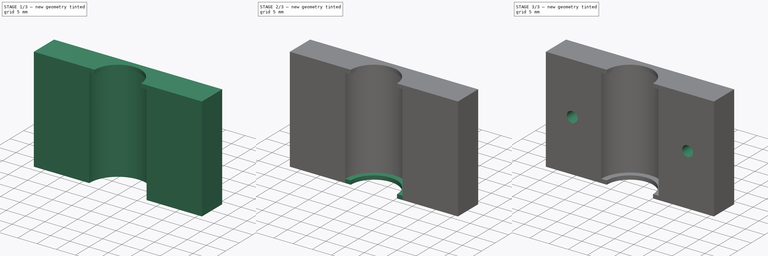
[diagram: build sequence overview — one tinted view per stage of 3, left to right]
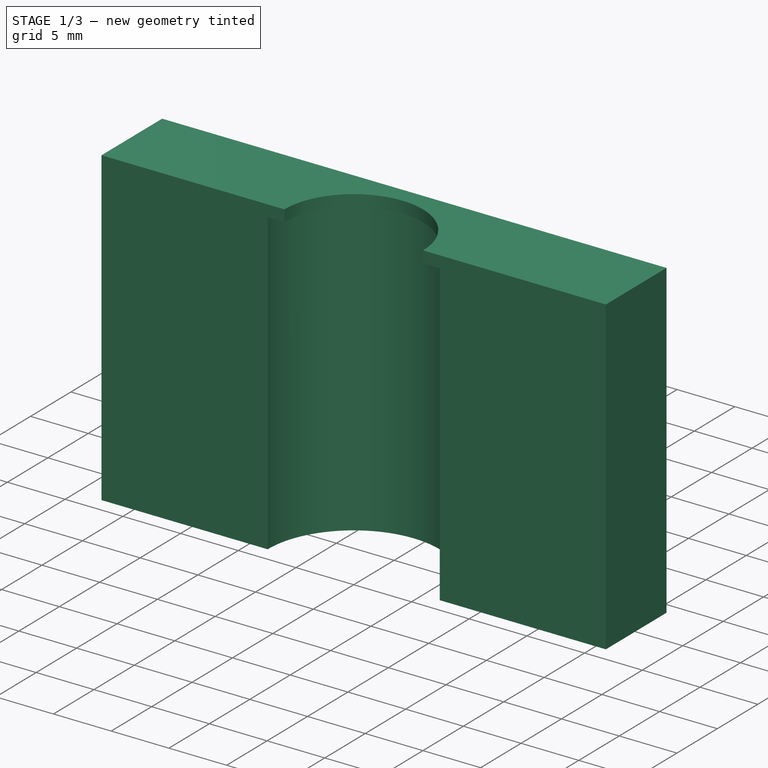
[diagram: stage 1 of 3 — iso view after this stage's code; geometry added in this stage tinted green]
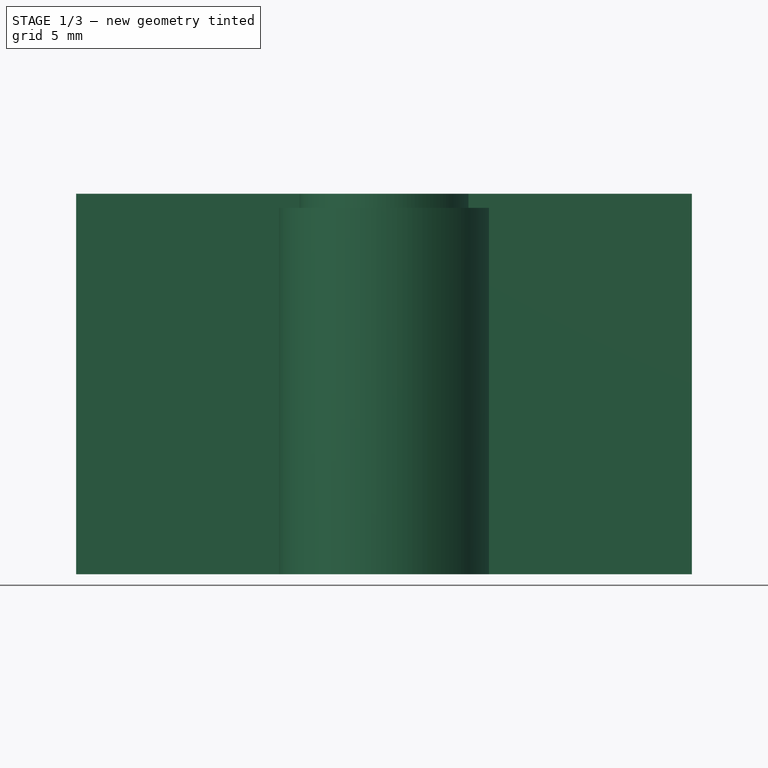
[diagram: stage 1 of 3 — front view after this stage's code; geometry added in this stage tinted green]
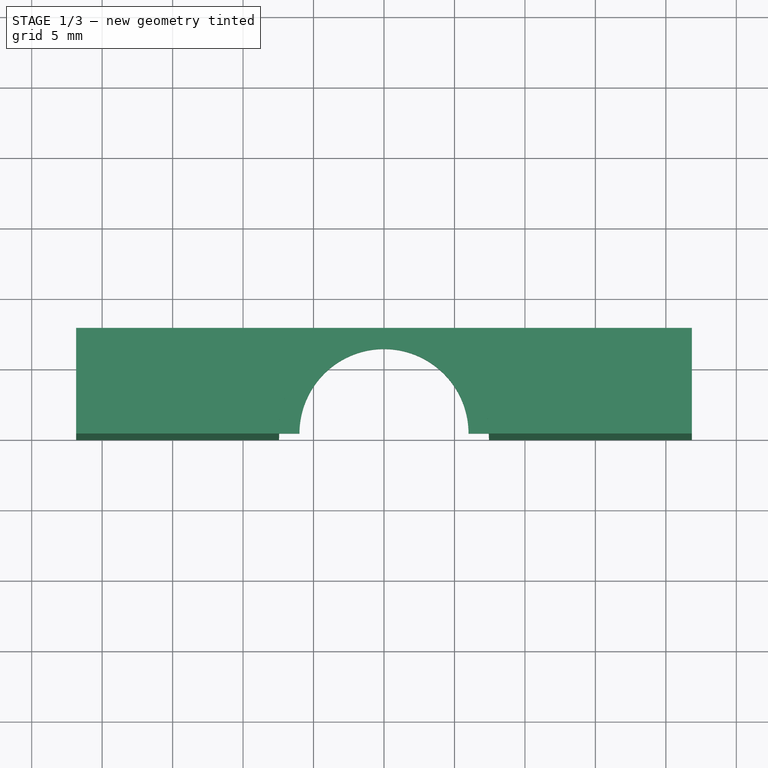
[diagram: stage 1 of 3 — top view after this stage's code; geometry added in this stage tinted green]
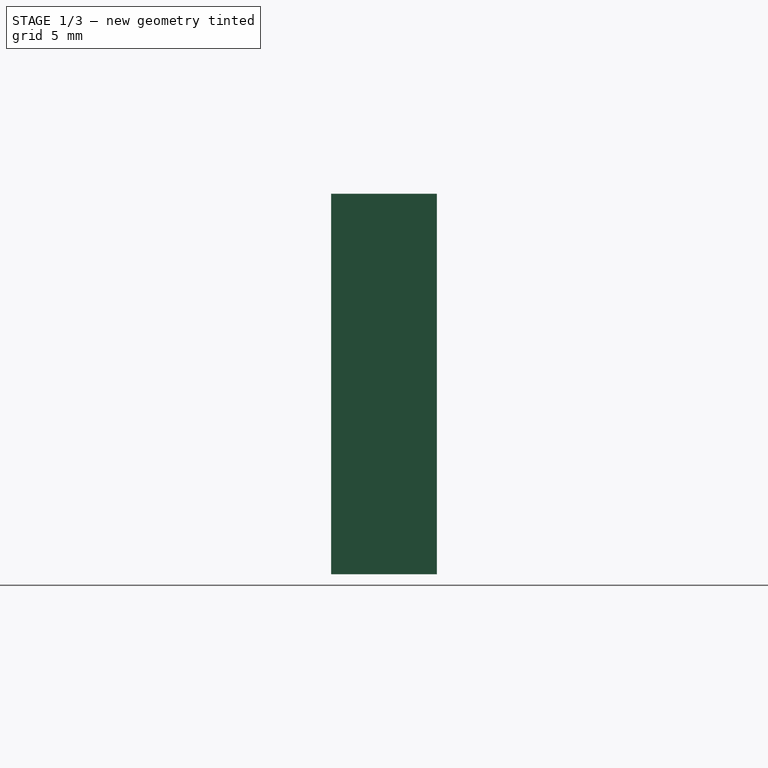
[diagram: stage 1 of 3 — right view after this stage's code; geometry added in this stage tinted green]
FCSTD DOCUMENT  (FreeCAD 0.16R6707 (Git))
Label: SingleLinearBearingBASE
License: All rights reserved
LicenseURL: http://en.wikipedia.org/wiki/All_rights_reserved
objects: Sketcher::SketchObject×4, PartDesign::Pad×4, Part::MultiFuse×1, Part::Cut×1
note: 14 computed .brp shape members not serialized (recipe doc carries the construction recipe); baked Part::Feature solids carry a one-line shape summary decoded from their .brp

FEATURE [PartDesign::Pad] Pad005  label="TopLip"
  Length = 1
  Length2 = 100
  Placement = pos=(0,0,26) rot=(0,0,1;0rad)
  Sketch = -> Sketch005
  Type = 0
FEATURE [PartDesign::Pad] Pad006  label="Base"
  Length = 27
  Length2 = 100
  Sketch = -> Sketch
  Type = 0
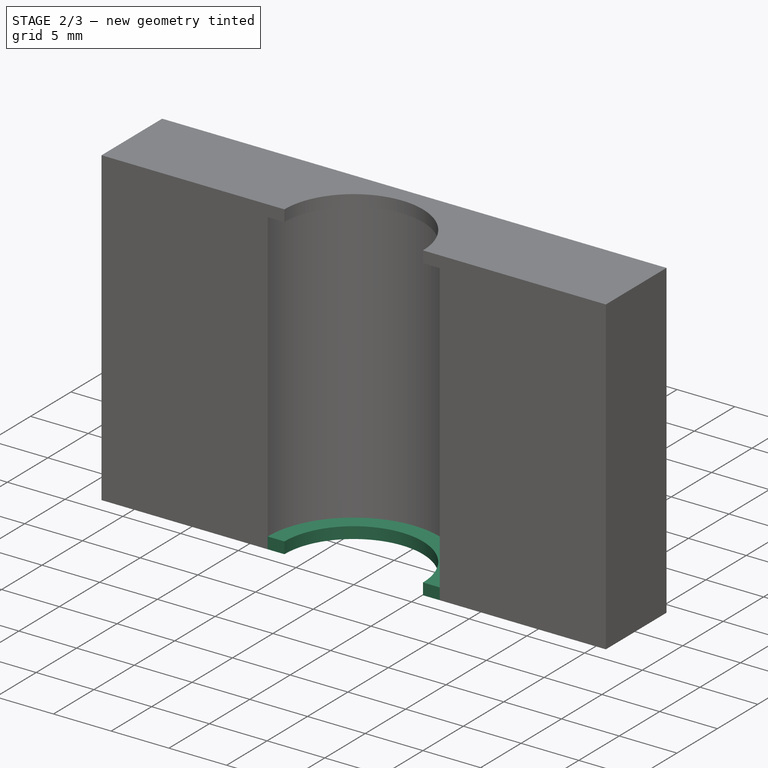
[diagram: stage 2 of 3 — iso view after this stage's code; geometry added in this stage tinted green]
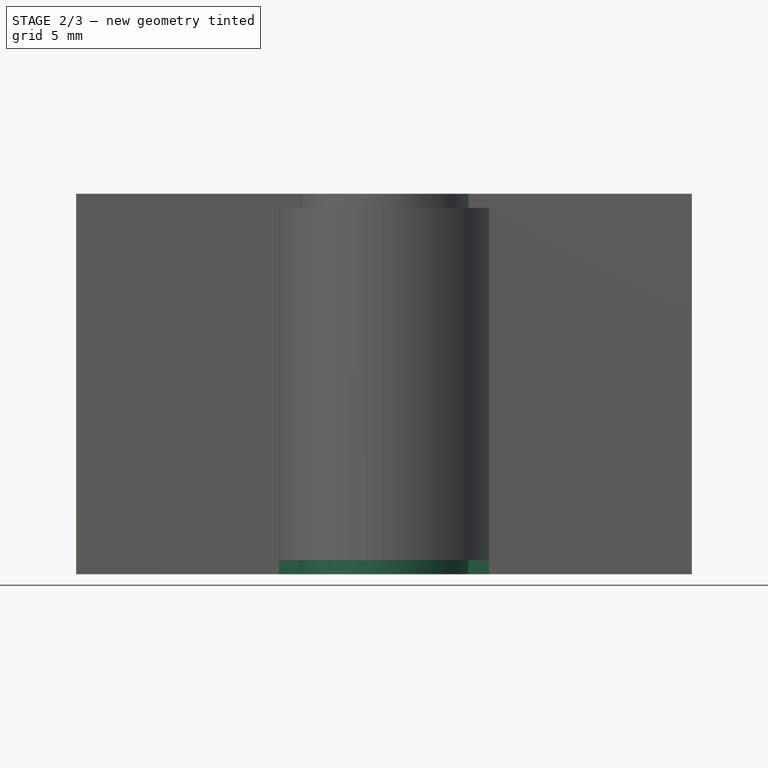
[diagram: stage 2 of 3 — front view after this stage's code; geometry added in this stage tinted green]
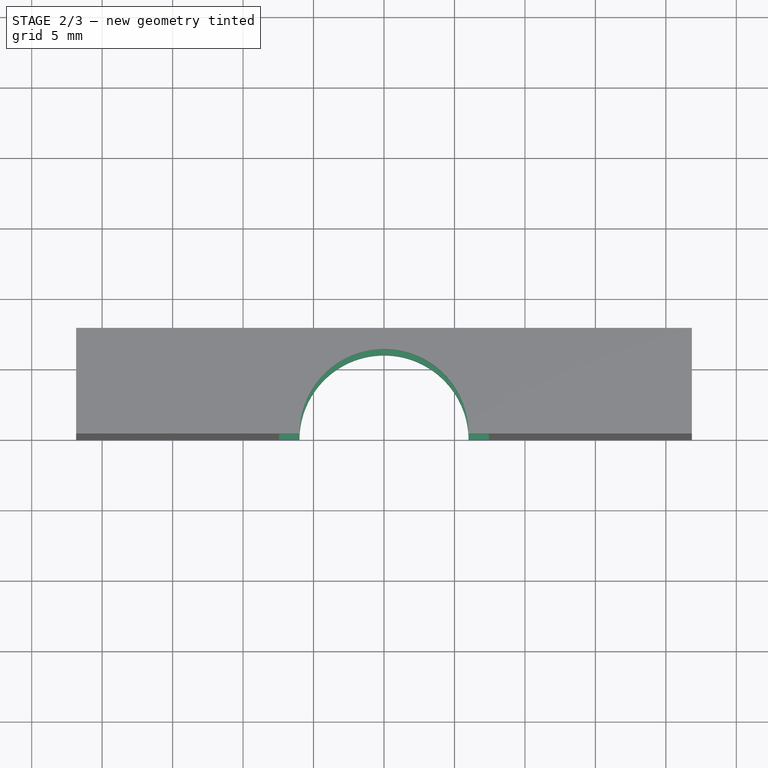
[diagram: stage 2 of 3 — top view after this stage's code; geometry added in this stage tinted green]
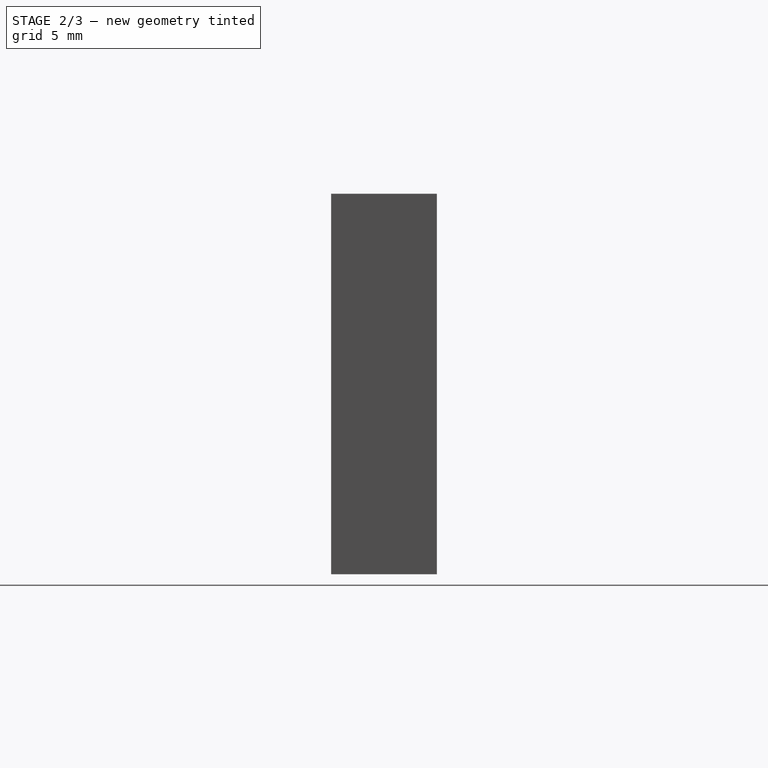
[diagram: stage 2 of 3 — right view after this stage's code; geometry added in this stage tinted green]
FEATURE [PartDesign::Pad] Pad  label="BottomLip"
  Length = 1
  Length2 = 100
  Sketch = -> Sketch003
  Type = 0
FEATURE [Part::MultiFuse] Fusion  label="BaseBlock"
  Shapes = -> [Pad006,Pad005,Pad]
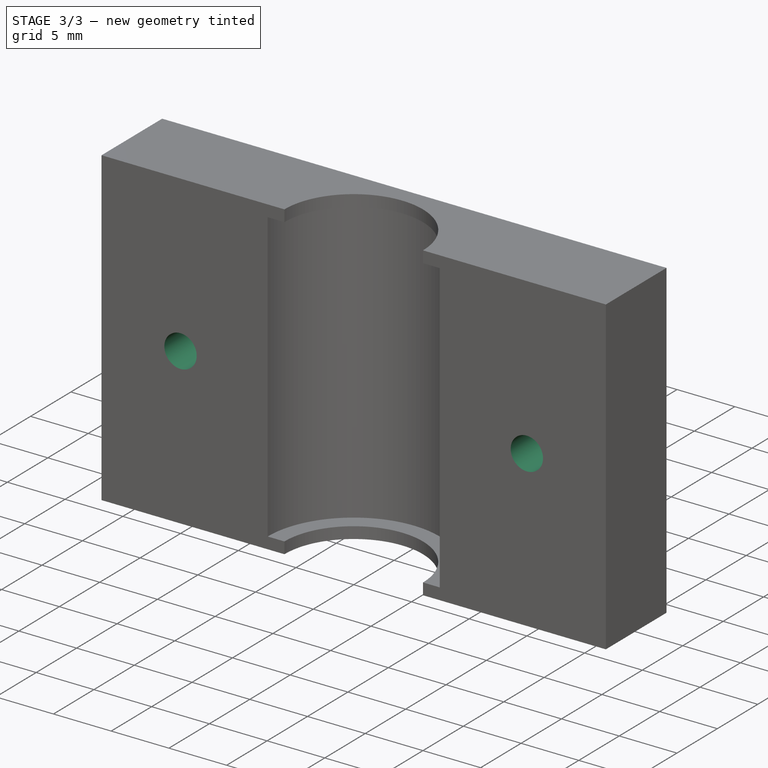
[diagram: stage 3 of 3 — iso view after this stage's code; geometry added in this stage tinted green]
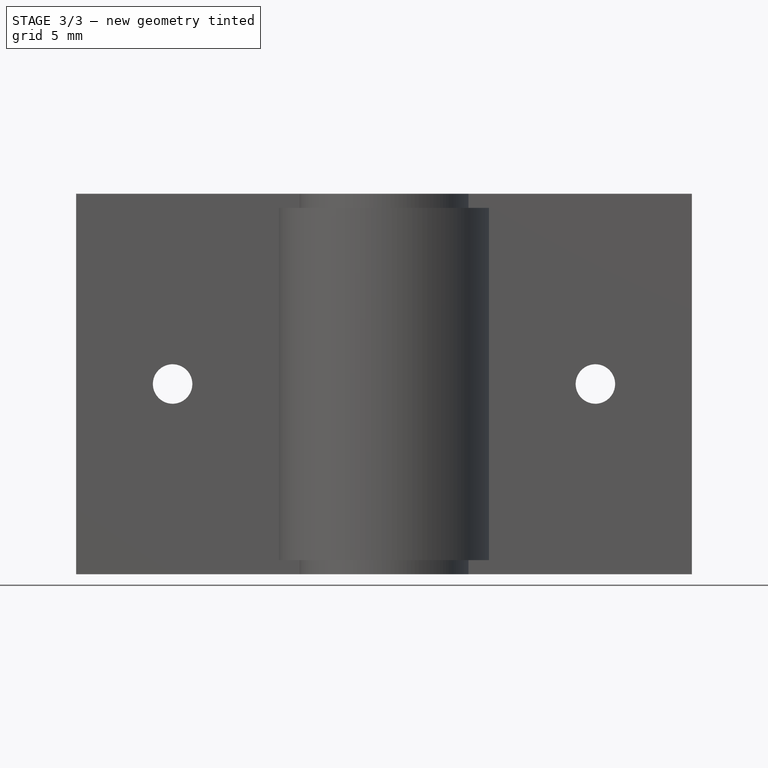
[diagram: stage 3 of 3 — front view after this stage's code; geometry added in this stage tinted green]
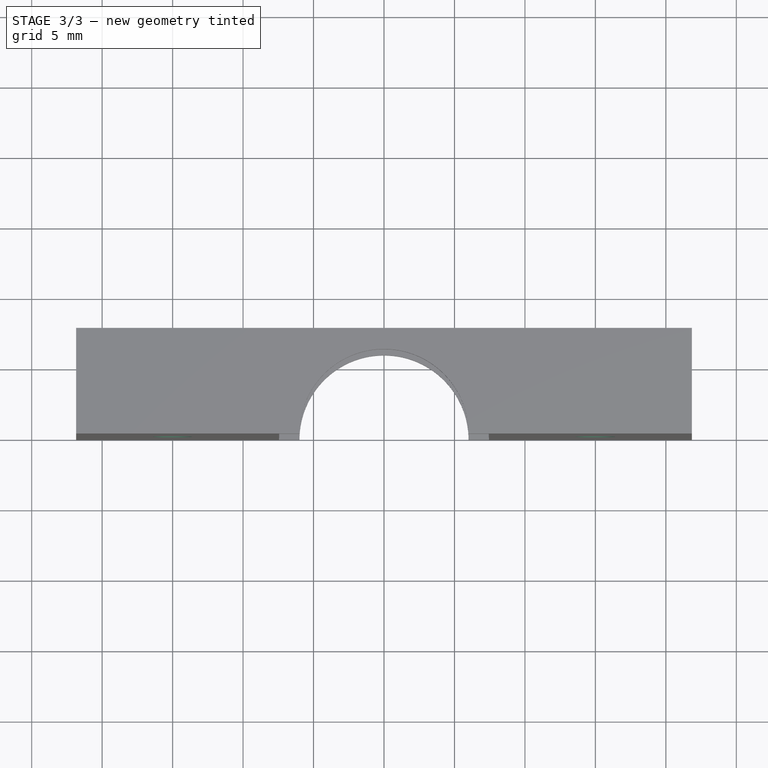
[diagram: stage 3 of 3 — top view after this stage's code; geometry added in this stage tinted green]
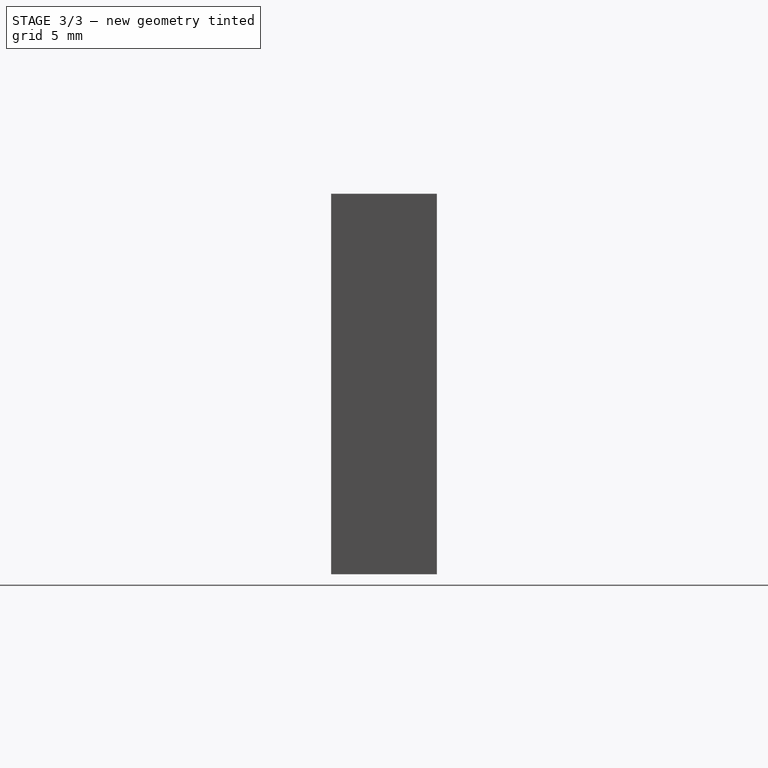
[diagram: stage 3 of 3 — right view after this stage's code; geometry added in this stage tinted green]
FEATURE [Sketcher::SketchObject] Sketch
  sketch-geometry (6):
    g0: ArcOfCircle CenterX=0 CenterY=0 CenterZ=0 NormalX=0 NormalY=0 NormalZ=1 Radius=7.45 StartAngle=0 EndAngle=3.14159
    g1: LineSegment StartX=7.45 StartY=0 StartZ=0 EndX=21.8427 EndY=0 EndZ=0
    g2: LineSegment StartX=21.8427 StartY=0 StartZ=0 EndX=21.8427 EndY=7.5 EndZ=0
    g3: LineSegment StartX=-7.45 StartY=0 StartZ=0 EndX=-21.8427 EndY=0 EndZ=0
    g4: LineSegment StartX=-21.8427 StartY=0 StartZ=0 EndX=-21.8427 EndY=7.5 EndZ=0
    g5: LineSegment StartX=-21.8427 StartY=7.5 StartZ=0 EndX=21.8427 EndY=7.5 EndZ=0
  constraints (19):
    c: Coincident(g0,g-1)
    c: PointOnObject(g0,g-1)
    c: PointOnObject(g0,g-1)
    c: Horizontal(g1)
    c: Coincident(g1,g2)
    c: Horizontal(g3)
    c: Coincident(g3,g4)
    c: Coincident(g4,g5)
    c: Horizontal(g5)
    c: Vertical(g4)
    c: Coincident(g3,g0)
    c: Coincident(g0,g1)
    c: Vertical(g2)
    c: Equal(g2,g4)
    c: Radius(g0) = 7.45
    c: DistanceX(g3,g1) = 43.6854
    c: Coincident(g2,g5)
    c: Symmetric(g1,g3,g-2)
    c: DistanceY(g2,g2) = 7.5
FEATURE [Sketcher::SketchObject] Sketch003
  sketch-geometry (4):
    g0: ArcOfCircle CenterX=0 CenterY=0 CenterZ=0 NormalX=0 NormalY=0 NormalZ=1 Radius=7.46 StartAngle=0 EndAngle=3.14159
    g1: LineSegment StartX=-7.46 StartY=0 StartZ=0 EndX=-6 EndY=0 EndZ=0
    g2: LineSegment StartX=7.46 StartY=0 StartZ=0 EndX=6 EndY=0 EndZ=0
    g3: ArcOfCircle CenterX=0 CenterY=0 CenterZ=0 NormalX=0 NormalY=0 NormalZ=1 Radius=6 StartAngle=0 EndAngle=3.14159
  constraints (12):
    c: Coincident(g0,g-1)
    c: PointOnObject(g0,g-1)
    c: PointOnObject(g0,g-1)
    c: Horizontal(g1)
    c: Horizontal(g2)
    c: Coincident(g2,g0)
    c: Coincident(g1,g0)
    c: Coincident(g3,g-1)
    c: Coincident(g3,g1)
    c: Coincident(g3,g2)
    c: Radius(g0) = 7.46
    c: Radius(g3) = 6
FEATURE [Sketcher::SketchObject] Sketch005
  Placement = pos=(0,0,26) rot=(0,0,1;0rad)
  sketch-geometry (4):
    g0: ArcOfCircle CenterX=0 CenterY=0 CenterZ=0 NormalX=0 NormalY=0 NormalZ=1 Radius=7.46 StartAngle=0 EndAngle=3.14159
    g1: LineSegment StartX=-7.46 StartY=-2e-12 StartZ=0 EndX=-6 EndY=-2e-12 EndZ=0
    g2: LineSegment StartX=7.46 StartY=0 StartZ=0 EndX=6 EndY=0 EndZ=0
    g3: ArcOfCircle CenterX=0 CenterY=0 CenterZ=0 NormalX=0 NormalY=0 NormalZ=1 Radius=6 StartAngle=0 EndAngle=3.14159
  constraints (12):
    c: Coincident(g0,g-1)
    c: PointOnObject(g0,g-1)
    c: PointOnObject(g0,g-1)
    c: Horizontal(g1)
    c: Horizontal(g2)
    c: Coincident(g2,g0)
    c: Coincident(g1,g0)
    c: Coincident(g3,g-1)
    c: Coincident(g3,g1)
    c: Coincident(g3,g2)
    c: Radius(g0) = 7.46
    c: Radius(g3) = 6
FEATURE [Sketcher::SketchObject] Sketch006
  Placement = pos=(0,0,0) rot=(1,0,0;1.5708rad)
  sketch-geometry (2):
    g0: Circle CenterX=-15 CenterY=13.5 CenterZ=0 NormalX=0 NormalY=0 NormalZ=1 Radius=1.4
    g1: Circle CenterX=15 CenterY=13.5 CenterZ=0 NormalX=0 NormalY=0 NormalZ=1 Radius=1.4
  constraints (6):
    c: DistanceY(g1,g0) = 0
    c: Symmetric(g1,g0,g-2)
    c: DistanceY(g-1,g0) = 13.5
    c: Radius(g0) = 1.4
    c: DistanceX(g0,g1) = 30
    c: Equal(g1,g0)
FEATURE [PartDesign::Pad] Pad004  label="Mount"
  Length = 7.5
  Length2 = 100
  Placement = pos=(0,0,0) rot=(1,0,0;1.5708rad)
  Reversed = true
  Sketch = -> Sketch006
  Type = 0
FEATURE [Part::Cut] Cut  label="Final"
  Base = -> Fusion
  Tool = -> Pad004
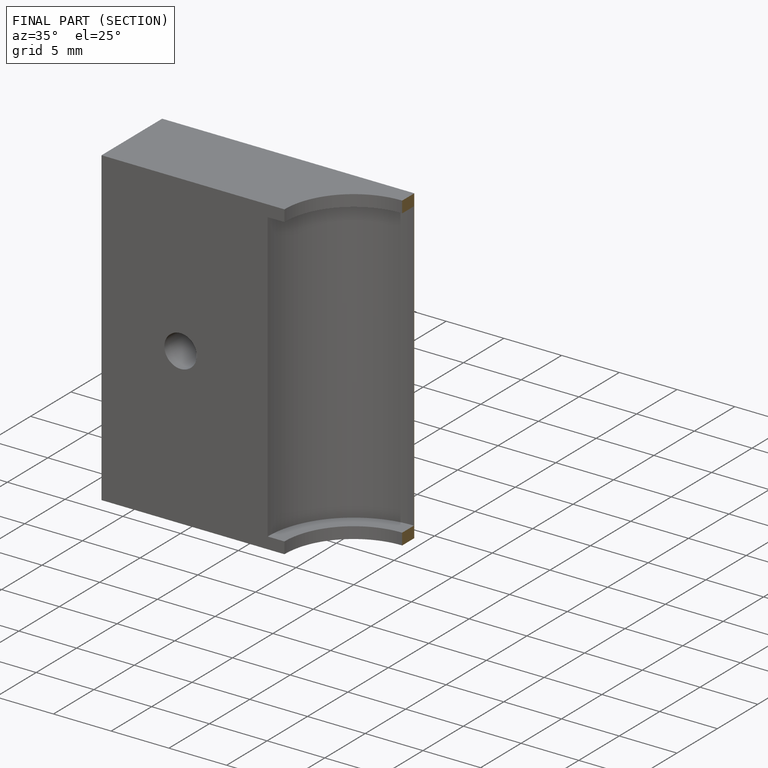
[diagram: finished part — half-section view (interior)]
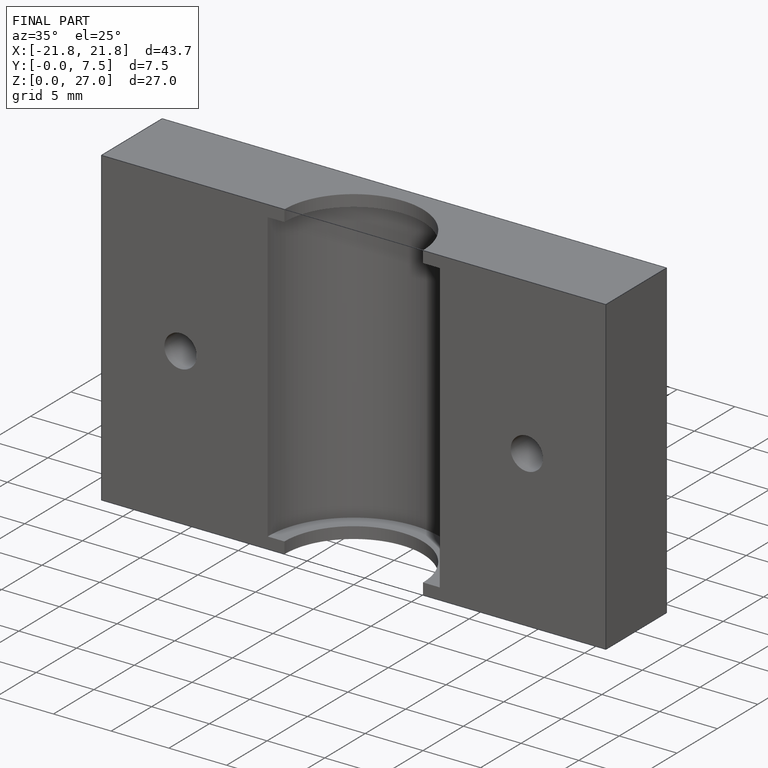
[diagram: finished part — iso view with bounding-box wireframe]
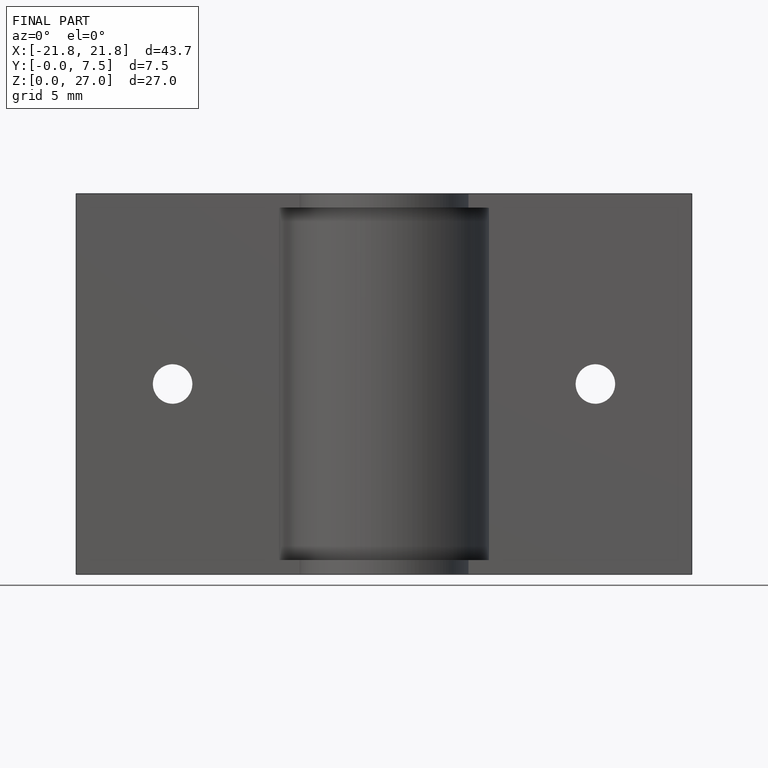
[diagram: finished part — front view with bounding-box wireframe]
